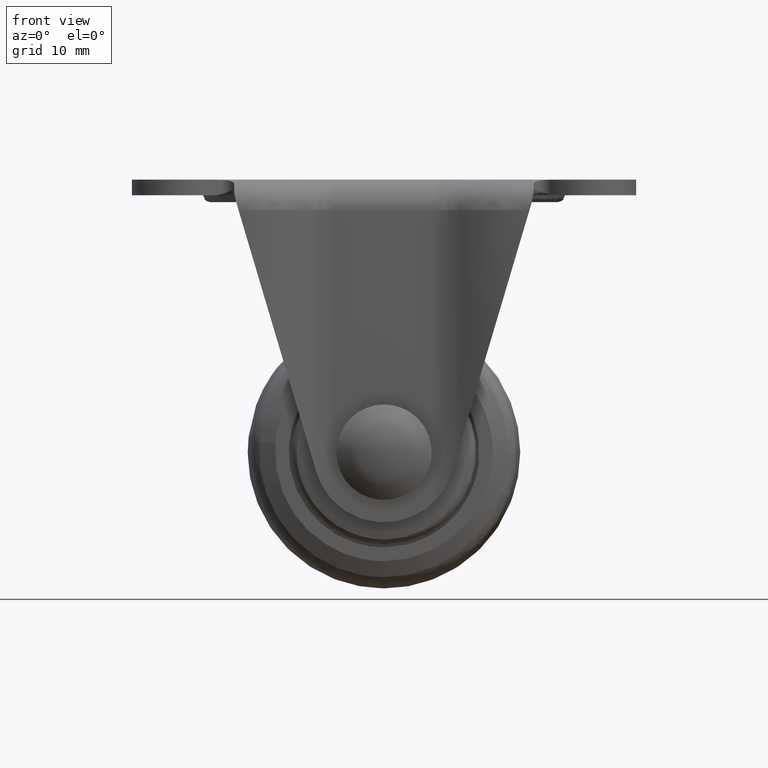
[diagram: clean part render]
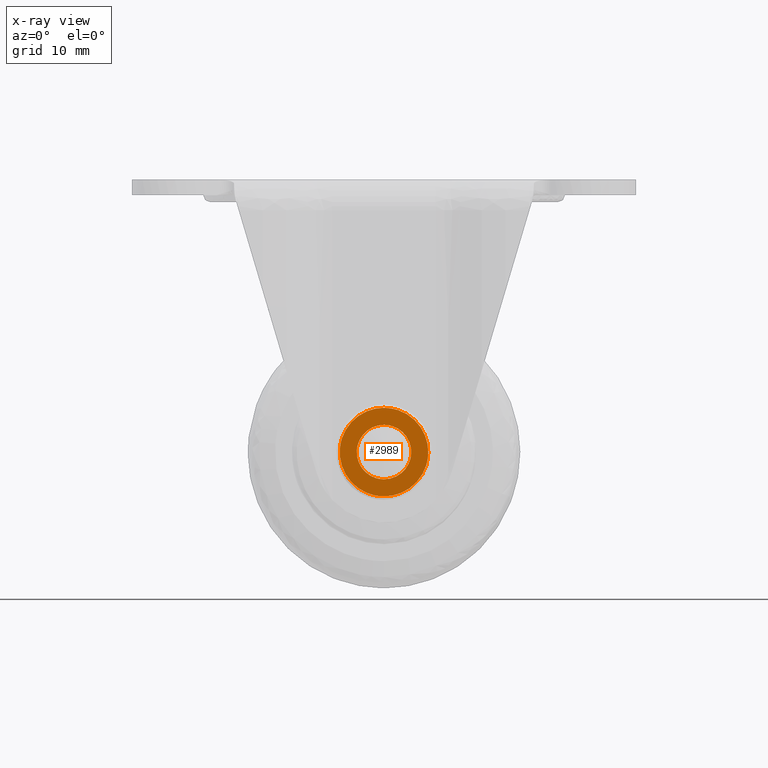
[diagram: x-ray — body ghosted, one internal face saturated and labeled with its STEP entity id]
A machine part, front view, then the same camera in x-ray: the body is ghosted and one INTERNAL B-rep face — a face not visible from any outside direction — is saturated and labeled: STEP entity #2989.
In plain terms, the highlighted face is a freeform B-spline surface patch.
Its self-contained STEP definition (entity closure, byte-faithful):
#1306=CARTESIAN_POINT('',(3.972038105451626,-15.500000000000000,-40.472136938653591));
#1307=VERTEX_POINT('',#1306);
#1308=CARTESIAN_POINT('',(0.0,-15.500000000000000,-35.999999999999893));
#1309=VERTEX_POINT('',#1308);
#1310=CARTESIAN_POINT('',(3.972038105451625,-15.499999999999996,-40.472136938653591));
#1311=CARTESIAN_POINT('',(4.000000000000116,-15.500000000000004,-40.236896478634463));
#1312=CARTESIAN_POINT('',(4.000000000000116,-15.500000000000000,-40.0));
#1313=CARTESIAN_POINT('',(4.000000000000116,-15.500000000000004,-35.999999999999879));
#1314=CARTESIAN_POINT('',(0.0,-15.500000000000000,-35.999999999999893));
#1322=(BOUNDED_CURVE()B_SPLINE_CURVE(2,(#1310,#1311,#1312,#1313,#1314),.UNSPECIFIED.,.F.,.U.)B_SPLINE_CURVE_WITH_KNOTS((3,2,3),(0.229562473513386,0.250000000000000,0.500000000000000),.UNSPECIFIED.)CURVE()GEOMETRIC_REPRESENTATION_ITEM()RATIONAL_B_SPLINE_CURVE((0.956026754183460,0.976055948331002,1.0,0.707106781186548,1.0))REPRESENTATION_ITEM(''));
#1323=EDGE_CURVE('',#1307,#1309,#1322,.T.);
#1325=CARTESIAN_POINT('',(-3.992539193679579,-15.500000000000000,-39.755805841729710));
#1326=VERTEX_POINT('',#1325);
#1327=CARTESIAN_POINT('',(0.0,-15.500000000000000,-35.999999999999893));
#1328=CARTESIAN_POINT('',(-3.762824267375785,-15.500000000000000,-35.999999999999901));
#1329=CARTESIAN_POINT('',(-3.992539193679579,-15.500000000000002,-39.755805841729710));
#1337=(BOUNDED_CURVE()B_SPLINE_CURVE(2,(#1327,#1328,#1329),.UNSPECIFIED.,.F.,.U.)B_SPLINE_CURVE_WITH_KNOTS((3,3),(0.500000000000000,0.739332962230658),.UNSPECIFIED.)CURVE()GEOMETRIC_REPRESENTATION_ITEM()RATIONAL_B_SPLINE_CURVE((1.0,0.719603993296416,0.976072041648962))REPRESENTATION_ITEM(''));
#1338=EDGE_CURVE('',#1309,#1326,#1337,.T.);
#1405=CARTESIAN_POINT('',(0.0,-15.500000000000000,-44.000000000000107));
#1406=VERTEX_POINT('',#1405);
#1407=CARTESIAN_POINT('',(0.0,-15.500000000000000,-44.000000000000107));
#1408=CARTESIAN_POINT('',(3.552698103757769,-15.500000000000002,-44.000000000000121));
#1409=CARTESIAN_POINT('',(3.972038105451625,-15.500000000000004,-40.472136938653584));
#1417=(BOUNDED_CURVE()B_SPLINE_CURVE(2,(#1407,#1408,#1409),.UNSPECIFIED.,.F.,.U.)B_SPLINE_CURVE_WITH_KNOTS((3,3),(0.0,0.229562473513386),.UNSPECIFIED.)CURVE()GEOMETRIC_REPRESENTATION_ITEM()RATIONAL_B_SPLINE_CURVE((1.0,0.731050832855546,0.956026754183460))REPRESENTATION_ITEM(''));
#1418=EDGE_CURVE('',#1406,#1307,#1417,.T.);
#1452=CARTESIAN_POINT('',(-3.992539193679579,-15.499999999999998,-39.755805841729710));
#1453=CARTESIAN_POINT('',(-4.000000000000116,-15.500000000000000,-39.877788946674428));
#1454=CARTESIAN_POINT('',(-4.000000000000116,-15.500000000000000,-40.0));
#1455=CARTESIAN_POINT('',(-4.000000000000116,-15.500000000000004,-44.000000000000121));
#1456=CARTESIAN_POINT('',(0.0,-15.500000000000000,-44.000000000000107));
#1464=(BOUNDED_CURVE()B_SPLINE_CURVE(2,(#1452,#1453,#1454,#1455,#1456),.UNSPECIFIED.,.F.,.U.)B_SPLINE_CURVE_WITH_KNOTS((3,2,3),(0.739332962230658,0.750000000000000,1.0),.UNSPECIFIED.)CURVE()GEOMETRIC_REPRESENTATION_ITEM()RATIONAL_B_SPLINE_CURVE((0.976072041648961,0.987502787890131,1.0,0.707106781186548,1.0))REPRESENTATION_ITEM(''));
#1465=EDGE_CURVE('',#1326,#1406,#1464,.T.);
#2461=CARTESIAN_POINT('',(6.499486788329877,-15.499999999999920,-40.081679259276633));
#2462=VERTEX_POINT('',#2461);
#2476=CARTESIAN_POINT('',(0.0,-15.500000000000000,-46.499999999999922));
#2477=VERTEX_POINT('',#2476);
#2478=CARTESIAN_POINT('',(0.0,-15.500000000000000,-46.499999999999922));
#2479=CARTESIAN_POINT('',(6.418827544353615,-15.499999999999993,-46.499999999999936));
#2480=CARTESIAN_POINT('',(6.499486788329877,-15.499999999999915,-40.081679259276626));
#2488=(BOUNDED_CURVE()B_SPLINE_CURVE(2,(#2478,#2479,#2480),.UNSPECIFIED.,.F.,.U.)B_SPLINE_CURVE_WITH_KNOTS((3,3),(0.0,0.247784295920527),.UNSPECIFIED.)CURVE()GEOMETRIC_REPRESENTATION_ITEM()RATIONAL_B_SPLINE_CURVE((1.0,0.709702639985647,0.994854295641247))REPRESENTATION_ITEM(''));
#2489=EDGE_CURVE('',#2477,#2462,#2488,.T.);
#2491=CARTESIAN_POINT('',(-6.484176889648040,-15.499999999999920,-39.546733863313833));
#2492=VERTEX_POINT('',#2491);
#2493=CARTESIAN_POINT('',(-6.484176889648040,-15.499999999999920,-39.546733863313840));
#2494=CARTESIAN_POINT('',(-6.499999999999920,-15.500000000000004,-39.773090746046549));
#2495=CARTESIAN_POINT('',(-6.499999999999920,-15.500000000000000,-40.0));
#2496=CARTESIAN_POINT('',(-6.499999999999920,-15.500000000000005,-46.499999999999936));
#2497=CARTESIAN_POINT('',(0.0,-15.500000000000000,-46.499999999999922));
#2505=(BOUNDED_CURVE()B_SPLINE_CURVE(2,(#2493,#2494,#2495,#2496,#2497),.UNSPECIFIED.,.F.,.U.)B_SPLINE_CURVE_WITH_KNOTS((3,2,3),(0.737833686494553,0.750000000000000,1.0),.UNSPECIFIED.)CURVE()GEOMETRIC_REPRESENTATION_ITEM()RATIONAL_B_SPLINE_CURVE((0.972879876301232,0.985746277105184,1.0,0.707106781186547,1.0))REPRESENTATION_ITEM(''));
#2506=EDGE_CURVE('',#2492,#2477,#2505,.T.);
#2563=CARTESIAN_POINT('',(0.0,-15.500000000000000,-33.500000000000078));
#2564=VERTEX_POINT('',#2563);
#2565=CARTESIAN_POINT('',(0.0,-15.500000000000000,-33.500000000000078));
#2566=CARTESIAN_POINT('',(-6.061489505799172,-15.499999999999996,-33.500000000000085));
#2567=CARTESIAN_POINT('',(-6.484176889648040,-15.499999999999915,-39.546733863313833));
#2575=(BOUNDED_CURVE()B_SPLINE_CURVE(2,(#2565,#2566,#2567),.UNSPECIFIED.,.F.,.U.)B_SPLINE_CURVE_WITH_KNOTS((3,3),(0.500000000000000,0.737833686494553),.UNSPECIFIED.)CURVE()GEOMETRIC_REPRESENTATION_ITEM()RATIONAL_B_SPLINE_CURVE((1.0,0.721360504081363,0.972879876301233))REPRESENTATION_ITEM(''));
#2576=EDGE_CURVE('',#2564,#2492,#2575,.T.);
#2578=CARTESIAN_POINT('',(6.499486788329877,-15.499999999999911,-40.081679259276626));
#2579=CARTESIAN_POINT('',(6.499999999999920,-15.499999999999996,-40.040841241969474));
#2580=CARTESIAN_POINT('',(6.499999999999920,-15.500000000000000,-40.0));
#2581=CARTESIAN_POINT('',(6.499999999999920,-15.500000000000005,-33.500000000000085));
#2582=CARTESIAN_POINT('',(0.0,-15.500000000000000,-33.500000000000078));
#2590=(BOUNDED_CURVE()B_SPLINE_CURVE(2,(#2578,#2579,#2580,#2581,#2582),.UNSPECIFIED.,.F.,.U.)B_SPLINE_CURVE_WITH_KNOTS((3,2,3),(0.247784295920527,0.250000000000000,0.500000000000000),.UNSPECIFIED.)CURVE()GEOMETRIC_REPRESENTATION_ITEM()RATIONAL_B_SPLINE_CURVE((0.994854295641248,0.997404141200900,1.0,0.707106781186547,1.0))REPRESENTATION_ITEM(''));
#2591=EDGE_CURVE('',#2462,#2564,#2590,.T.);
#2972=CARTESIAN_POINT('',(-7.148545887985400,-15.500000000000000,-32.850650025196607));
#2973=CARTESIAN_POINT('',(-7.148545887985400,-15.500000000000000,-47.149350323490559));
#2974=CARTESIAN_POINT('',(7.148774443040392,-15.500000000000000,-32.850650025196607));
#2975=CARTESIAN_POINT('',(7.148774443040392,-15.500000000000000,-47.149350323490559));
#2976=B_SPLINE_SURFACE_WITH_KNOTS('',1,1,((#2972,#2974),(#2973,#2975)),.UNSPECIFIED.,.F.,.F.,.U.,(2,2),(2,2),(0.0,14.298700298293950),(0.0,14.297320331025791),.UNSPECIFIED.);
#2977=ORIENTED_EDGE('',*,*,#2489,.T.);
#2978=ORIENTED_EDGE('',*,*,#2591,.T.);
#2979=ORIENTED_EDGE('',*,*,#2576,.T.);
#2980=ORIENTED_EDGE('',*,*,#2506,.T.);
#2981=EDGE_LOOP('',(#2977,#2978,#2979,#2980));
#2982=FACE_OUTER_BOUND('',#2981,.T.);
#2983=ORIENTED_EDGE('',*,*,#1338,.F.);
#2984=ORIENTED_EDGE('',*,*,#1323,.F.);
#2985=ORIENTED_EDGE('',*,*,#1418,.F.);
#2986=ORIENTED_EDGE('',*,*,#1465,.F.);
#2987=EDGE_LOOP('',(#2983,#2984,#2985,#2986));
#2988=FACE_BOUND('',#2987,.T.);
#2989=ADVANCED_FACE('',(#2982,#2988),#2976,.T.);